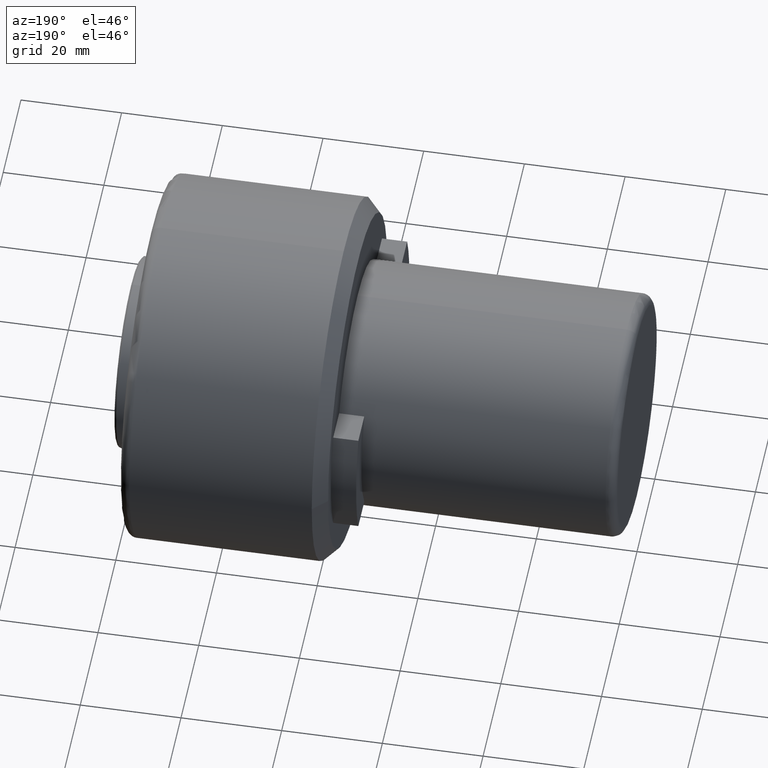
[diagram: clean part render]
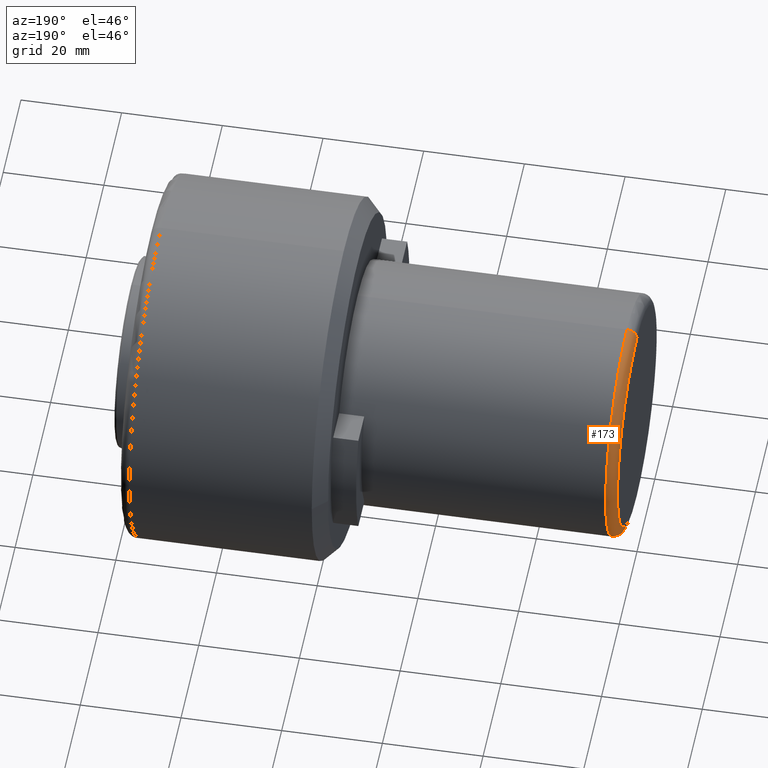
[diagram: same view with one face highlighted and labeled with its STEP entity id]
A machine part, auxiliary view. The second image highlights one B-rep face of the part: STEP entity #173.
In plain terms, the highlighted toroidal blend (fillet) surface has major radius 22 mm and minor (blend) radius 2 mm.
Its self-contained STEP definition (entity closure, byte-faithful):
#34 = AXIS2_PLACEMENT_3D ( 'NONE', #280, #1026, #398 ) ;
#42 = DIRECTION ( 'NONE',  ( 0.0000000000000000000, 0.0000000000000000000, 1.000000000000000000 ) ) ;
#51 = DIRECTION ( 'NONE',  ( 0.0000000000000000000, 1.000000000000000000, 1.224646799147353200E-016 ) ) ;
#73 = CARTESIAN_POINT ( 'NONE',  ( 0.0000000000000000000, 0.0000000000000000000, -7.733975497063264400E-015 ) ) ;
#84 = DIRECTION ( 'NONE',  ( 0.0000000000000000000, 0.0000000000000000000, 1.000000000000000000 ) ) ;
#107 = AXIS2_PLACEMENT_3D ( 'NONE', #1371, #748, #84 ) ;
#115 = CIRCLE ( 'NONE', #34, 2.000000000000001800 ) ;
#173 = ADVANCED_FACE ( 'NONE', ( #582 ), #1101, .T. ) ;
#191 = DIRECTION ( 'NONE',  ( 0.0000000000000000000, 0.0000000000000000000, 1.000000000000000000 ) ) ;
#203 = ORIENTED_EDGE ( 'NONE', *, *, #824, .F. ) ;
#231 = CIRCLE ( 'NONE', #578, 22.00000000000000000 ) ;
#243 = EDGE_CURVE ( 'NONE', #1290, #628, #619, .T. ) ;
#280 = CARTESIAN_POINT ( 'NONE',  ( 2.000000000000001800, 0.0000000000000000000, 21.99999999999999300 ) ) ;
#398 = DIRECTION ( 'NONE',  ( 0.0000000000000000000, 0.0000000000000000000, -1.000000000000000000 ) ) ;
#402 = CARTESIAN_POINT ( 'NONE',  ( 2.000000000000001800, 0.0000000000000000000, 23.99999999999999300 ) ) ;
#449 = VERTEX_POINT ( 'NONE', #782 ) ;
#455 = EDGE_LOOP ( 'NONE', ( #617, #1309, #203, #723 ) ) ;
#556 = CARTESIAN_POINT ( 'NONE',  ( 0.0000000000000000000, 2.816687638038912400E-015, -22.00000000000000700 ) ) ;
#578 = AXIS2_PLACEMENT_3D ( 'NONE', #73, #833, #191 ) ;
#582 = FACE_OUTER_BOUND ( 'NONE', #455, .T. ) ;
#617 = ORIENTED_EDGE ( 'NONE', *, *, #882, .F. ) ;
#619 = CIRCLE ( 'NONE', #1273, 2.000000000000001800 ) ;
#628 = VERTEX_POINT ( 'NONE', #556 ) ;
#704 = DIRECTION ( 'NONE',  ( -1.000000000000000000, 0.0000000000000000000, 0.0000000000000000000 ) ) ;
#711 = CARTESIAN_POINT ( 'NONE',  ( 2.000000000000001800, 2.694222958124176800E-015, -22.00000000000000700 ) ) ;
#723 = ORIENTED_EDGE ( 'NONE', *, *, #1071, .F. ) ;
#748 = DIRECTION ( 'NONE',  ( 1.000000000000000000, -0.0000000000000000000, -0.0000000000000000000 ) ) ;
#782 = CARTESIAN_POINT ( 'NONE',  ( 0.0000000000000000000, 0.0000000000000000000, 21.99999999999999300 ) ) ;
#810 = DIRECTION ( 'NONE',  ( 0.0000000000000000000, -1.224646799147351500E-016, 1.000000000000000000 ) ) ;
#824 = EDGE_CURVE ( 'NONE', #449, #628, #231, .T. ) ;
#833 = DIRECTION ( 'NONE',  ( -1.000000000000000000, 0.0000000000000000000, 0.0000000000000000000 ) ) ;
#882 = EDGE_CURVE ( 'NONE', #1290, #1098, #1294, .T. ) ;
#1026 = DIRECTION ( 'NONE',  ( 0.0000000000000000000, -1.000000000000000000, 0.0000000000000000000 ) ) ;
#1071 = EDGE_CURVE ( 'NONE', #1098, #449, #115, .T. ) ;
#1098 = VERTEX_POINT ( 'NONE', #402 ) ;
#1101 = TOROIDAL_SURFACE ( 'NONE', #1253, 22.00000000000000000, 2.000000000000000000 ) ;
#1216 = CARTESIAN_POINT ( 'NONE',  ( 2.000000000000001800, 0.0000000000000000000, -7.733975497063264400E-015 ) ) ;
#1253 = AXIS2_PLACEMENT_3D ( 'NONE', #1216, #704, #42 ) ;
#1272 = CARTESIAN_POINT ( 'NONE',  ( 2.000000000000001800, 2.939152317953648700E-015, -24.00000000000001100 ) ) ;
#1273 = AXIS2_PLACEMENT_3D ( 'NONE', #711, #51, #810 ) ;
#1290 = VERTEX_POINT ( 'NONE', #1272 ) ;
#1294 = CIRCLE ( 'NONE', #107, 24.00000000000000000 ) ;
#1309 = ORIENTED_EDGE ( 'NONE', *, *, #243, .T. ) ;
#1371 = CARTESIAN_POINT ( 'NONE',  ( 2.000000000000001800, 0.0000000000000000000, -7.733975497063264400E-015 ) ) ;